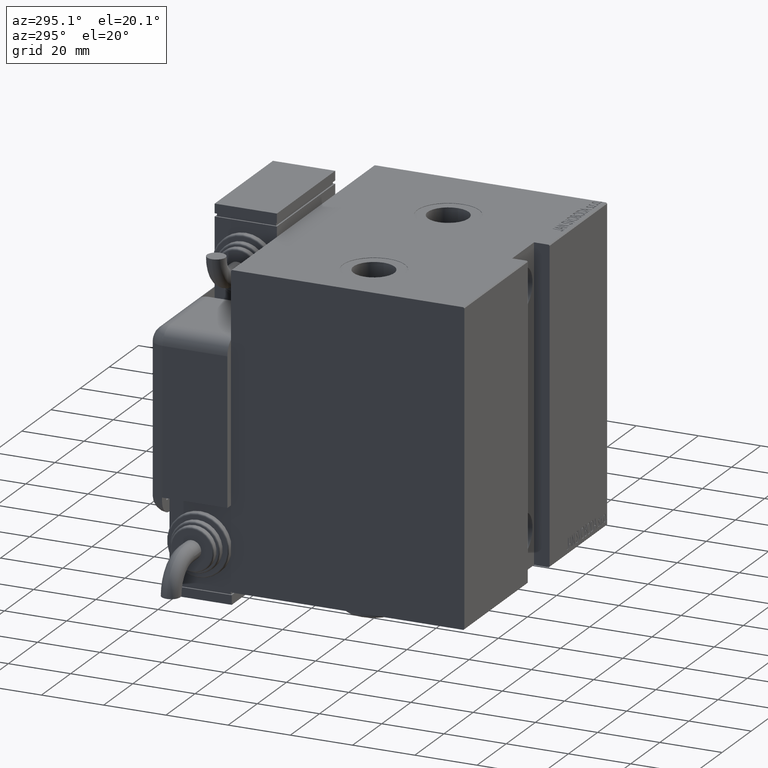
[diagram: clean part render]
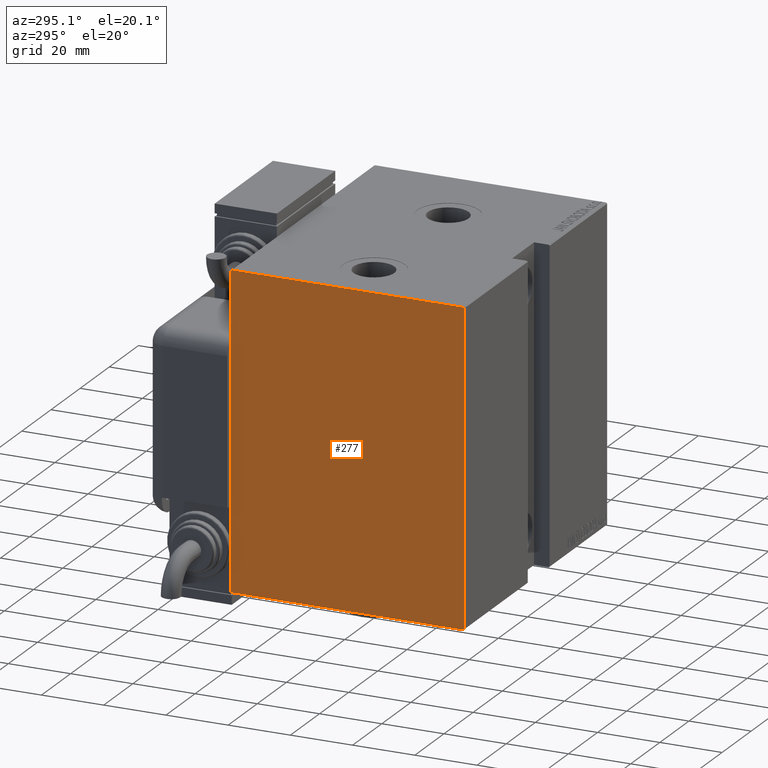
[diagram: same view with one face highlighted and labeled with its STEP entity id]
A machine part, auxiliary view. The second image highlights one B-rep face of the part: STEP entity #277.
In plain terms, the highlighted planar face has unit normal (-1, 0, 0).
Its self-contained STEP definition (entity closure, byte-faithful):
#277 = ADVANCED_FACE ( 'NONE', ( #5332 ), #5032, .T. ) ;
#474 = DIRECTION ( 'NONE',  ( 1.000000000000000000, 0.000000000000000000, 0.000000000000000000 ) ) ;
#626 = EDGE_CURVE ( 'NONE', #6424, #12672, #7258, .T. ) ;
#1206 = CARTESIAN_POINT ( 'NONE',  ( 98.00000000000000000, -37.50000000000000000, 50.00000000000000000 ) ) ;
#1217 = CARTESIAN_POINT ( 'NONE',  ( 98.00000000000000000, 37.19999999999998863, -50.00000000000000711 ) ) ;
#1253 = ORIENTED_EDGE ( 'NONE', *, *, #39295, .T. ) ;
#1771 = VECTOR ( 'NONE', #20881, 1000.000000000000000 ) ;
#2169 = EDGE_CURVE ( 'NONE', #45440, #6424, #41272, .T. ) ;
#3085 = VECTOR ( 'NONE', #18254, 1000.000000000000000 ) ;
#4148 = CARTESIAN_POINT ( 'NONE',  ( 98.00000000000000000, 37.50000000000000711, -49.70000000000000284 ) ) ;
#4205 = VECTOR ( 'NONE', #14326, 1000.000000000000114 ) ;
#4860 = VERTEX_POINT ( 'NONE', #1217 ) ;
#4981 = CARTESIAN_POINT ( 'NONE',  ( 98.00000000000000000, -37.50000000000000000, -49.69999999999999574 ) ) ;
#5032 = PLANE ( 'NONE',  #44243 ) ;
#5332 = FACE_OUTER_BOUND ( 'NONE', #40113, .T. ) ;
#6065 = DIRECTION ( 'NONE',  ( 0.000000000000000000, 0.000000000000000000, -1.000000000000000000 ) ) ;
#6424 = VERTEX_POINT ( 'NONE', #29809 ) ;
#6923 = VERTEX_POINT ( 'NONE', #4148 ) ;
#7258 = LINE ( 'NONE', #26290, #1771 ) ;
#7379 = DIRECTION ( 'NONE',  ( 0.000000000000000000, 1.000000000000000000, 9.251858538542970348E-17 ) ) ;
#8852 = VERTEX_POINT ( 'NONE', #4981 ) ;
#9825 = VECTOR ( 'NONE', #6065, 1000.000000000000000 ) ;
#11337 = VERTEX_POINT ( 'NONE', #58784 ) ;
#11461 = ORIENTED_EDGE ( 'NONE', *, *, #626, .T. ) ;
#12672 = VERTEX_POINT ( 'NONE', #34193 ) ;
#13132 = CARTESIAN_POINT ( 'NONE',  ( 98.00000000000000000, -43.59999999999956088, 43.60000000000057696 ) ) ;
#13237 = ORIENTED_EDGE ( 'NONE', *, *, #51351, .T. ) ;
#14103 = LINE ( 'NONE', #42221, #40861 ) ;
#14326 = DIRECTION ( 'NONE',  ( 0.000000000000000000, -0.7071067811865556774, -0.7071067811865392461 ) ) ;
#14385 = ORIENTED_EDGE ( 'NONE', *, *, #32276, .T. ) ;
#14395 = DIRECTION ( 'NONE',  ( -0.000000000000000000, 0.7071067811865556774, 0.7071067811865392461 ) ) ;
#14705 = CARTESIAN_POINT ( 'NONE',  ( 98.00000000000000000, 0.000000000000000000, 0.000000000000000000 ) ) ;
#16521 = ORIENTED_EDGE ( 'NONE', *, *, #43700, .T. ) ;
#17675 = VECTOR ( 'NONE', #7379, 1000.000000000000000 ) ;
#17692 = LINE ( 'NONE', #45494, #40071 ) ;
#17715 = EDGE_CURVE ( 'NONE', #6923, #45440, #41833, .T. ) ;
#18254 = DIRECTION ( 'NONE',  ( 0.000000000000000000, -1.387778780781445182E-16, 1.000000000000000000 ) ) ;
#18288 = CARTESIAN_POINT ( 'NONE',  ( 98.00000000000000000, 43.60000000000042775, 43.59999999999941878 ) ) ;
#19983 = LINE ( 'NONE', #1206, #9825 ) ;
#20881 = DIRECTION ( 'NONE',  ( 0.000000000000000000, -1.000000000000000000, -1.850371707708594563E-16 ) ) ;
#22833 = DIRECTION ( 'NONE',  ( -0.000000000000000000, 0.7071067811865474617, -0.7071067811865474617 ) ) ;
#25593 = ORIENTED_EDGE ( 'NONE', *, *, #2169, .T. ) ;
#26290 = CARTESIAN_POINT ( 'NONE',  ( 98.00000000000000000, 37.49999999999999289, 50.00000000000001421 ) ) ;
#29809 = CARTESIAN_POINT ( 'NONE',  ( 98.00000000000000000, 37.19999999999998153, 50.00000000000001421 ) ) ;
#31210 = EDGE_CURVE ( 'NONE', #4860, #6923, #14103, .T. ) ;
#32182 = LINE ( 'NONE', #13132, #4205 ) ;
#32276 = EDGE_CURVE ( 'NONE', #39144, #4860, #34885, .T. ) ;
#32822 = ORIENTED_EDGE ( 'NONE', *, *, #17715, .T. ) ;
#33148 = DIRECTION ( 'NONE',  ( 0.000000000000000000, 0.000000000000000000, -1.000000000000000000 ) ) ;
#34193 = CARTESIAN_POINT ( 'NONE',  ( 98.00000000000000000, -37.19999999999996732, 50.00000000000000000 ) ) ;
#34885 = LINE ( 'NONE', #53339, #17675 ) ;
#35479 = VECTOR ( 'NONE', #46100, 1000.000000000000114 ) ;
#36692 = CARTESIAN_POINT ( 'NONE',  ( 98.00000000000000000, 37.50000000000000711, -50.00000000000000711 ) ) ;
#39144 = VERTEX_POINT ( 'NONE', #58397 ) ;
#39295 = EDGE_CURVE ( 'NONE', #11337, #8852, #19983, .T. ) ;
#40071 = VECTOR ( 'NONE', #22833, 1000.000000000000114 ) ;
#40113 = EDGE_LOOP ( 'NONE', ( #14385, #41689, #32822, #25593, #11461, #16521, #1253, #13237 ) ) ;
#40861 = VECTOR ( 'NONE', #14395, 1000.000000000000114 ) ;
#41272 = LINE ( 'NONE', #18288, #35479 ) ;
#41689 = ORIENTED_EDGE ( 'NONE', *, *, #31210, .T. ) ;
#41833 = LINE ( 'NONE', #36692, #3085 ) ;
#42221 = CARTESIAN_POINT ( 'NONE',  ( 98.00000000000000000, 43.59999999999956088, -43.60000000000057696 ) ) ;
#43700 = EDGE_CURVE ( 'NONE', #12672, #11337, #32182, .T. ) ;
#44243 = AXIS2_PLACEMENT_3D ( 'NONE', #14705, #474, #33148 ) ;
#45440 = VERTEX_POINT ( 'NONE', #52762 ) ;
#45494 = CARTESIAN_POINT ( 'NONE',  ( 98.00000000000000000, -43.59999999999999432, -43.59999999999999432 ) ) ;
#46100 = DIRECTION ( 'NONE',  ( -0.000000000000000000, -0.7071067811865392461, 0.7071067811865556774 ) ) ;
#51351 = EDGE_CURVE ( 'NONE', #8852, #39144, #17692, .T. ) ;
#52762 = CARTESIAN_POINT ( 'NONE',  ( 98.00000000000000000, 37.49999999999999289, 49.70000000000000284 ) ) ;
#53339 = CARTESIAN_POINT ( 'NONE',  ( 98.00000000000000000, -37.50000000000000000, -50.00000000000001421 ) ) ;
#58397 = CARTESIAN_POINT ( 'NONE',  ( 98.00000000000000000, -37.19999999999997442, -50.00000000000001421 ) ) ;
#58784 = CARTESIAN_POINT ( 'NONE',  ( 98.00000000000000000, -37.50000000000000000, 49.69999999999998153 ) ) ;